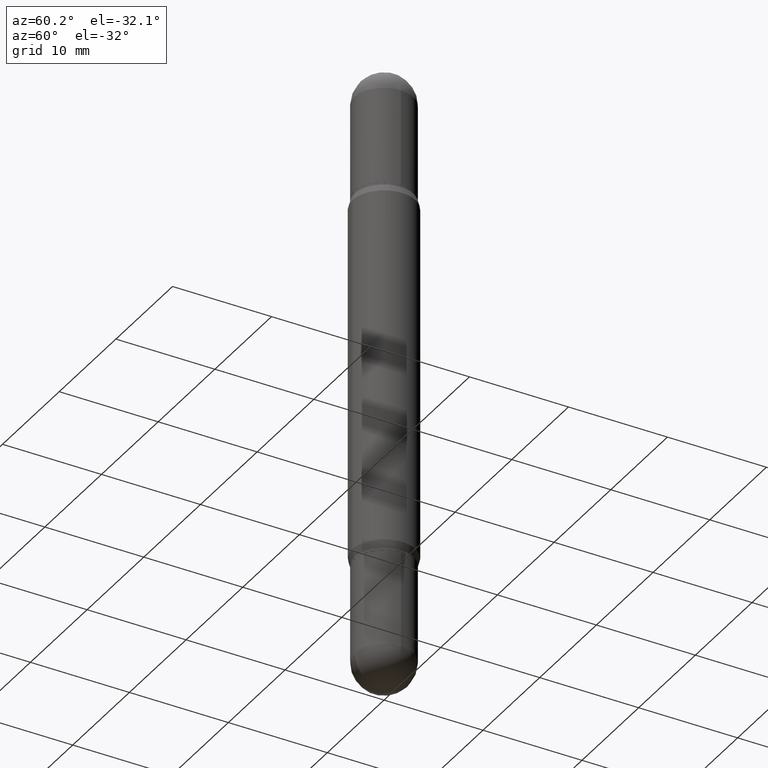
[diagram: clean part render]
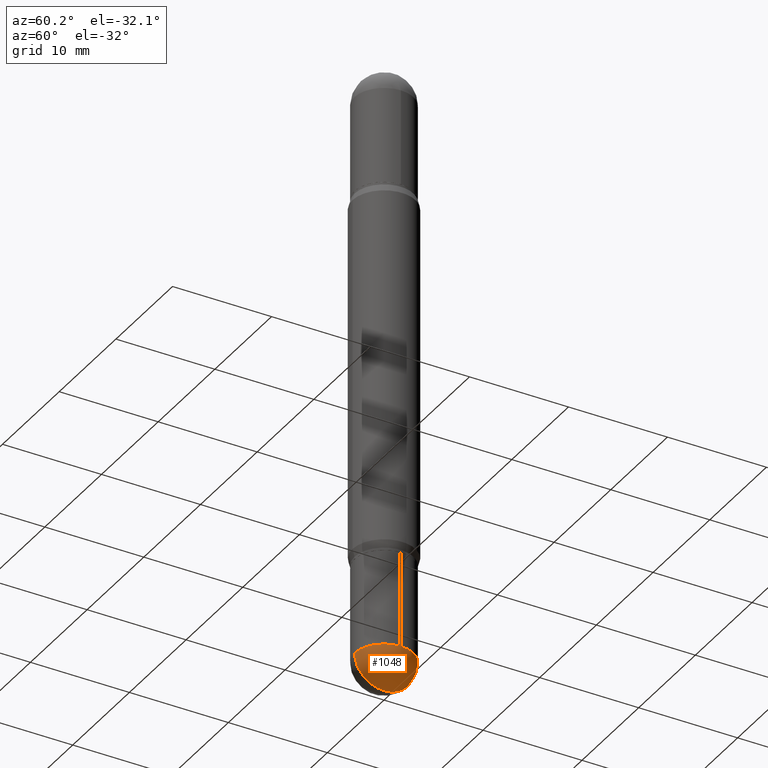
[diagram: same view with one face highlighted and labeled with its STEP entity id]
A machine part, auxiliary view. The second image highlights one B-rep face of the part: STEP entity #1048.
In plain terms, the highlighted spherical surface has radius 2.9769 mm.
Its self-contained STEP definition (entity closure, byte-faithful):
#24 = CARTESIAN_POINT ( 'NONE',  ( 5.827063071377943309E-29, -8.319501734195447151E-15, -2.382800000000000029 ) ) ;
#26 = CARTESIAN_POINT ( 'NONE',  ( 5.817040522468761480E-29, -8.333854594681453512E-15, -2.382800000000000029 ) ) ;
#44 = AXIS2_PLACEMENT_3D ( 'NONE', #26, #464, #369 ) ;
#52 = EDGE_CURVE ( 'NONE', #1115, #318, #463, .T. ) ;
#53 = SPHERICAL_SURFACE ( 'NONE', #299, 0.1172000000000000125 ) ;
#59 = CARTESIAN_POINT ( 'NONE',  ( 5.827063071377943309E-29, -8.319501734195447151E-15, -2.382800000000000029 ) ) ;
#65 = ORIENTED_EDGE ( 'NONE', *, *, #584, .F. ) ;
#81 = CIRCLE ( 'NONE', #204, 0.1171999999999999847 ) ;
#140 = DIRECTION ( 'NONE',  ( -7.105427357601001070E-15, -1.000000000000000000, 0.000000000000000000 ) ) ;
#171 = CIRCLE ( 'NONE', #978, 0.1172000000000000125 ) ;
#204 = AXIS2_PLACEMENT_3D ( 'NONE', #24, #969, #707 ) ;
#224 = EDGE_CURVE ( 'NONE', #760, #787, #363, .T. ) ;
#225 = CARTESIAN_POINT ( 'NONE',  ( -8.327560863107790324E-16, -0.1172000000000083114, -2.382799999999999585 ) ) ;
#250 = ORIENTED_EDGE ( 'NONE', *, *, #224, .F. ) ;
#299 = AXIS2_PLACEMENT_3D ( 'NONE', #635, #1077, #654 ) ;
#318 = VERTEX_POINT ( 'NONE', #390 ) ;
#340 = EDGE_LOOP ( 'NONE', ( #558, #984, #65, #250 ) ) ;
#363 = CIRCLE ( 'NONE', #791, 0.1171999999999999847 ) ;
#369 = DIRECTION ( 'NONE',  ( 6.982962677686265922E-15, 1.000000000000000000, 0.000000000000000000 ) ) ;
#390 = CARTESIAN_POINT ( 'NONE',  ( 8.184032258248885352E-16, 0.1171999999999916858, -2.382800000000000473 ) ) ;
#463 = CIRCLE ( 'NONE', #44, 0.1172000000000000125 ) ;
#464 = DIRECTION ( 'NONE',  ( 1.000000000000000000, -6.982962677686265922E-15, 4.883557194083112340E-29 ) ) ;
#558 = ORIENTED_EDGE ( 'NONE', *, *, #765, .F. ) ;
#560 = CARTESIAN_POINT ( 'NONE',  ( 5.817040522468761480E-29, -8.333854594681453512E-15, -2.382800000000000029 ) ) ;
#584 = EDGE_CURVE ( 'NONE', #787, #318, #81, .T. ) ;
#635 = CARTESIAN_POINT ( 'NONE',  ( 5.817040522468761480E-29, -8.333854594681453512E-15, -2.382800000000000029 ) ) ;
#654 = DIRECTION ( 'NONE',  ( 6.982962677686265922E-15, 1.000000000000000000, -2.330928322239132080E-15 ) ) ;
#707 = DIRECTION ( 'NONE',  ( 1.000000000000000000, -6.982962677686262766E-15, 0.000000000000000000 ) ) ;
#760 = VERTEX_POINT ( 'NONE', #225 ) ;
#765 = EDGE_CURVE ( 'NONE', #1115, #760, #171, .T. ) ;
#787 = VERTEX_POINT ( 'NONE', #871 ) ;
#791 = AXIS2_PLACEMENT_3D ( 'NONE', #59, #822, #906 ) ;
#822 = DIRECTION ( 'NONE',  ( -2.445468806185136597E-29, 3.491481338843145583E-15, 1.000000000000000000 ) ) ;
#850 = CARTESIAN_POINT ( 'NONE',  ( 6.108660741008250017E-29, -8.735879777350867334E-15, -2.500000000000000000 ) ) ;
#871 = CARTESIAN_POINT ( 'NONE',  ( 0.1171999999999999847, -8.469635431765699614E-15, -2.382800000000000029 ) ) ;
#905 = DIRECTION ( 'NONE',  ( -1.000000000000000000, 7.105427357601001070E-15, -4.926315508542082329E-29 ) ) ;
#906 = DIRECTION ( 'NONE',  ( 1.000000000000000000, -6.982962677686262766E-15, 0.000000000000000000 ) ) ;
#969 = DIRECTION ( 'NONE',  ( -2.445468806185136597E-29, 3.491481338843145583E-15, 1.000000000000000000 ) ) ;
#978 = AXIS2_PLACEMENT_3D ( 'NONE', #560, #905, #140 ) ;
#984 = ORIENTED_EDGE ( 'NONE', *, *, #52, .T. ) ;
#1048 = ADVANCED_FACE ( 'NONE', ( #1071 ), #53, .T. ) ;
#1071 = FACE_OUTER_BOUND ( 'NONE', #340, .T. ) ;
#1077 = DIRECTION ( 'NONE',  ( -1.000000000000000000, 6.982962677686265922E-15, -4.883557194083112340E-29 ) ) ;
#1115 = VERTEX_POINT ( 'NONE', #850 ) ;